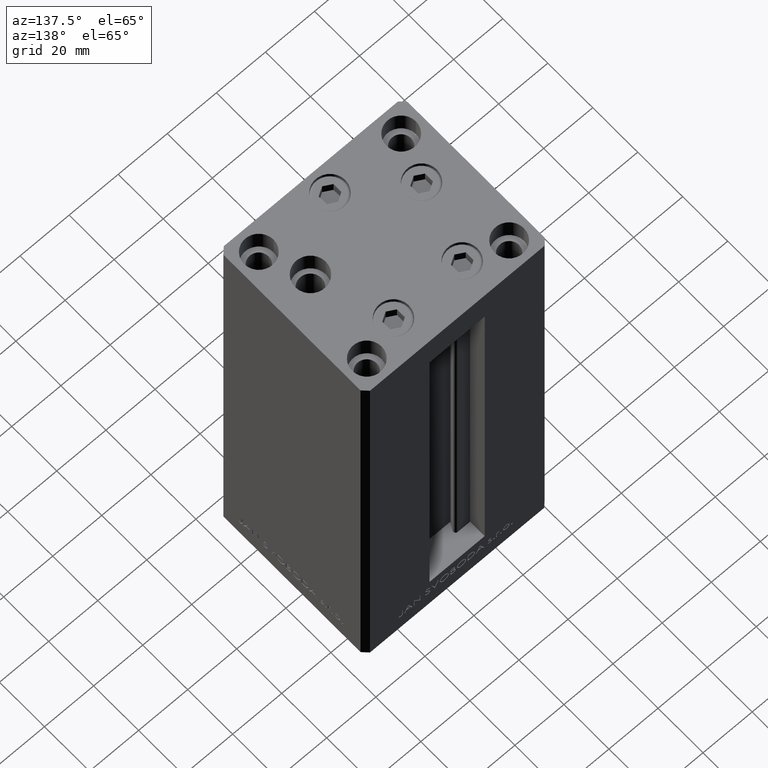
[diagram: clean part render]
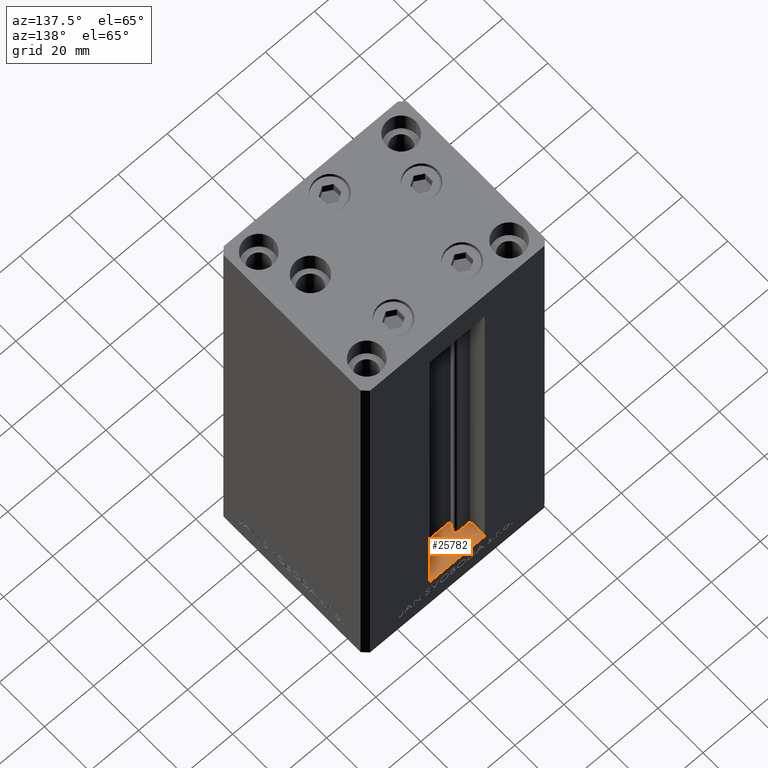
[diagram: same view with one face highlighted and labeled with its STEP entity id]
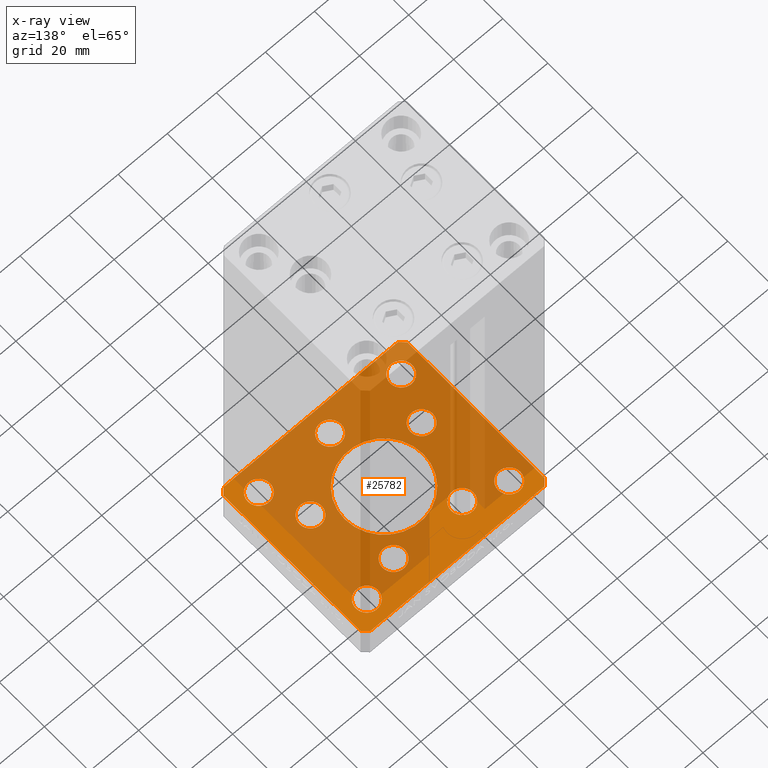
[diagram: x-ray of the same camera — body ghosted, the highlighted face saturated]
A machine part, auxiliary view. The second image highlights one B-rep face of the part: STEP entity #25782.
The next image is the same camera in x-ray: the body ghosted, the highlighted face saturated — about 74% of this face is hidden behind the body in this view.
In plain terms, the highlighted planar face has unit normal (0, 0, -1).
Its self-contained STEP definition (entity closure, byte-faithful):
#4 = CARTESIAN_POINT ( 'NONE',  ( -24.50000000000000000, -23.99999999999999645, -15.00000000000000000 ) ) ;
#116 = ORIENTED_EDGE ( 'NONE', *, *, #45130, .F. ) ;
#183 = DIRECTION ( 'NONE',  ( 1.000000000000000000, 0.000000000000000000, 0.000000000000000000 ) ) ;
#255 = EDGE_LOOP ( 'NONE', ( #15749, #4272 ) ) ;
#986 = EDGE_CURVE ( 'NONE', #38217, #24211, #26573, .T. ) ;
#1048 = CARTESIAN_POINT ( 'NONE',  ( 18.49106857963324657, 19.50000000000000000, -15.00000000000000000 ) ) ;
#1613 = CARTESIAN_POINT ( 'NONE',  ( 29.00000000000000000, 24.00000000000000355, -15.00000000000000000 ) ) ;
#1693 = CIRCLE ( 'NONE', #19871, 16.00000000000000000 ) ;
#1877 = EDGE_CURVE ( 'NONE', #40780, #24308, #14078, .T. ) ;
#1946 = DIRECTION ( 'NONE',  ( -0.000000000000000000, 0.000000000000000000, 1.000000000000000000 ) ) ;
#2206 = DIRECTION ( 'NONE',  ( -0.000000000000000000, 0.000000000000000000, 1.000000000000000000 ) ) ;
#2365 = CARTESIAN_POINT ( 'NONE',  ( -27.12741699796953299, -8.000000000000000000, -15.00000000000000000 ) ) ;
#2449 = VECTOR ( 'NONE', #3078, 1000.000000000000000 ) ;
#3078 = DIRECTION ( 'NONE',  ( 1.000000000000000000, 1.172770800660376149E-15, 0.000000000000000000 ) ) ;
#3452 = CIRCLE ( 'NONE', #5808, 4.500000000000000888 ) ;
#3788 = AXIS2_PLACEMENT_3D ( 'NONE', #20745, #1946, #37235 ) ;
#4053 = DIRECTION ( 'NONE',  ( 1.000000000000000000, 0.000000000000000000, 0.000000000000000000 ) ) ;
#4190 = CARTESIAN_POINT ( 'NONE',  ( 35.50000000000000000, 32.49999999999999289, -15.00000000000000000 ) ) ;
#4272 = ORIENTED_EDGE ( 'NONE', *, *, #15924, .T. ) ;
#4404 = DIRECTION ( 'NONE',  ( 0.7071067811865512365, -0.7071067811865439090, 0.000000000000000000 ) ) ;
#4513 = CARTESIAN_POINT ( 'NONE',  ( 4.500000000000001776, -24.00000000000001066, -15.00000000000000000 ) ) ;
#4534 = CARTESIAN_POINT ( 'NONE',  ( -4.500000000000001776, -24.00000000000001066, -15.00000000000000000 ) ) ;
#4544 = CARTESIAN_POINT ( 'NONE',  ( 18.12741699796953299, -8.000000000000000000, -15.00000000000000000 ) ) ;
#4550 = FACE_OUTER_BOUND ( 'NONE', #23425, .T. ) ;
#5247 = AXIS2_PLACEMENT_3D ( 'NONE', #18736, #48922, #15029 ) ;
#5261 = DIRECTION ( 'NONE',  ( 0.000000000000000000, -0.000000000000000000, -1.000000000000000000 ) ) ;
#5287 = ORIENTED_EDGE ( 'NONE', *, *, #46648, .F. ) ;
#5747 = ORIENTED_EDGE ( 'NONE', *, *, #1877, .F. ) ;
#5782 = EDGE_LOOP ( 'NONE', ( #19183, #24535 ) ) ;
#5808 = AXIS2_PLACEMENT_3D ( 'NONE', #37207, #33482, #33964 ) ;
#5925 = CARTESIAN_POINT ( 'NONE',  ( 29.00000000000000355, -23.99999999999999645, -15.00000000000000000 ) ) ;
#6341 = AXIS2_PLACEMENT_3D ( 'NONE', #39759, #20218, #38782 ) ;
#6362 = ORIENTED_EDGE ( 'NONE', *, *, #14155, .T. ) ;
#6502 = CIRCLE ( 'NONE', #30971, 4.499999999999997335 ) ;
#6777 = LINE ( 'NONE', #36974, #2449 ) ;
#6796 = LINE ( 'NONE', #14714, #40678 ) ;
#7023 = ORIENTED_EDGE ( 'NONE', *, *, #33014, .T. ) ;
#7046 = EDGE_LOOP ( 'NONE', ( #33510, #16805 ) ) ;
#7142 = CARTESIAN_POINT ( 'NONE',  ( -18.49106857963323947, 19.50000000000000000, -15.00000000000000000 ) ) ;
#7165 = VERTEX_POINT ( 'NONE', #24542 ) ;
#7549 = DIRECTION ( 'NONE',  ( 1.000000000000000000, 0.000000000000000000, 0.000000000000000000 ) ) ;
#7596 = CARTESIAN_POINT ( 'NONE',  ( -22.62741699796953299, -8.000000000000000000, -15.00000000000000000 ) ) ;
#7959 = CIRCLE ( 'NONE', #39590, 4.499999999999999112 ) ;
#8272 = FACE_BOUND ( 'NONE', #17121, .T. ) ;
#8275 = DIRECTION ( 'NONE',  ( -0.000000000000000000, 0.000000000000000000, 1.000000000000000000 ) ) ;
#8516 = FACE_BOUND ( 'NONE', #35074, .T. ) ;
#8809 = CARTESIAN_POINT ( 'NONE',  ( 24.50000000000000000, 24.00000000000000355, -15.00000000000000000 ) ) ;
#9318 = VERTEX_POINT ( 'NONE', #4 ) ;
#9497 = DIRECTION ( 'NONE',  ( 0.000000000000000000, -0.000000000000000000, -1.000000000000000000 ) ) ;
#9622 = CARTESIAN_POINT ( 'NONE',  ( -22.62741699796953299, -8.000000000000000000, -15.00000000000000000 ) ) ;
#9651 = EDGE_CURVE ( 'NONE', #24211, #38217, #45821, .T. ) ;
#9759 = DIRECTION ( 'NONE',  ( -0.000000000000000000, 0.000000000000000000, 1.000000000000000000 ) ) ;
#9764 = CIRCLE ( 'NONE', #21642, 4.500000000000000888 ) ;
#9787 = AXIS2_PLACEMENT_3D ( 'NONE', #22397, #41444, #7549 ) ;
#9994 = CARTESIAN_POINT ( 'NONE',  ( -16.00000000000000000, 1.959434878635765131E-15, -15.00000000000000000 ) ) ;
#10108 = CARTESIAN_POINT ( 'NONE',  ( 0.000000000000000000, -24.00000000000001066, -15.00000000000000000 ) ) ;
#10322 = AXIS2_PLACEMENT_3D ( 'NONE', #16369, #27745, #24033 ) ;
#10420 = CIRCLE ( 'NONE', #21483, 16.00000000000000000 ) ;
#10811 = VECTOR ( 'NONE', #25689, 1000.000000000000000 ) ;
#11246 = PLANE ( 'NONE',  #20124 ) ;
#11628 = ORIENTED_EDGE ( 'NONE', *, *, #47175, .T. ) ;
#11688 = ORIENTED_EDGE ( 'NONE', *, *, #22135, .T. ) ;
#11911 = EDGE_CURVE ( 'NONE', #24308, #21709, #28234, .T. ) ;
#11973 = EDGE_CURVE ( 'NONE', #23868, #22273, #28525, .T. ) ;
#11975 = VERTEX_POINT ( 'NONE', #28724 ) ;
#12220 = FACE_BOUND ( 'NONE', #255, .T. ) ;
#13325 = DIRECTION ( 'NONE',  ( 1.000000000000000000, 0.000000000000000000, 0.000000000000000000 ) ) ;
#13840 = EDGE_CURVE ( 'NONE', #45643, #11975, #17667, .T. ) ;
#13898 = ORIENTED_EDGE ( 'NONE', *, *, #45488, .F. ) ;
#14078 = LINE ( 'NONE', #44250, #10811 ) ;
#14154 = VERTEX_POINT ( 'NONE', #48760 ) ;
#14155 = EDGE_CURVE ( 'NONE', #47781, #41272, #32547, .T. ) ;
#14213 = CARTESIAN_POINT ( 'NONE',  ( -35.50000000000000711, 32.49999999999997868, -15.00000000000000000 ) ) ;
#14464 = DIRECTION ( 'NONE',  ( -0.7071067811865524577, 0.7071067811865426878, 0.000000000000000000 ) ) ;
#14714 = CARTESIAN_POINT ( 'NONE',  ( 37.50000000000000711, -30.49999999999992895, -15.00000000000000000 ) ) ;
#14801 = ORIENTED_EDGE ( 'NONE', *, *, #21953, .F. ) ;
#14822 = CARTESIAN_POINT ( 'NONE',  ( 35.50000000000000000, 32.49999999999999289, -15.00000000000000000 ) ) ;
#15029 = DIRECTION ( 'NONE',  ( 1.000000000000000000, 0.000000000000000000, 0.000000000000000000 ) ) ;
#15117 = AXIS2_PLACEMENT_3D ( 'NONE', #18347, #40873, #48040 ) ;
#15205 = FACE_BOUND ( 'NONE', #22546, .T. ) ;
#15361 = VERTEX_POINT ( 'NONE', #22062 ) ;
#15424 = DIRECTION ( 'NONE',  ( 1.000000000000000000, 0.000000000000000000, 0.000000000000000000 ) ) ;
#15687 = FACE_BOUND ( 'NONE', #7046, .T. ) ;
#15749 = ORIENTED_EDGE ( 'NONE', *, *, #11973, .T. ) ;
#15856 = VERTEX_POINT ( 'NONE', #36739 ) ;
#15880 = CARTESIAN_POINT ( 'NONE',  ( -18.12741699796953654, -8.000000000000000000, -15.00000000000000000 ) ) ;
#15924 = EDGE_CURVE ( 'NONE', #22273, #23868, #7959, .T. ) ;
#15933 = AXIS2_PLACEMENT_3D ( 'NONE', #10108, #24961, #32634 ) ;
#15994 = CIRCLE ( 'NONE', #27807, 4.499999999999997335 ) ;
#16171 = EDGE_CURVE ( 'NONE', #37331, #44269, #1693, .T. ) ;
#16369 = CARTESIAN_POINT ( 'NONE',  ( -13.99106857963324124, 19.50000000000000000, -15.00000000000000000 ) ) ;
#16500 = AXIS2_PLACEMENT_3D ( 'NONE', #9622, #22153, #28183 ) ;
#16654 = EDGE_CURVE ( 'NONE', #17652, #40780, #40817, .T. ) ;
#16805 = ORIENTED_EDGE ( 'NONE', *, *, #23112, .T. ) ;
#16842 = CARTESIAN_POINT ( 'NONE',  ( 35.50000000000001421, -32.49999999999992184, -15.00000000000000000 ) ) ;
#16943 = CARTESIAN_POINT ( 'NONE',  ( 29.00000000000000355, -23.99999999999999645, -15.00000000000000000 ) ) ;
#17004 = CIRCLE ( 'NONE', #18581, 4.500000000000000888 ) ;
#17121 = EDGE_LOOP ( 'NONE', ( #36898, #23331 ) ) ;
#17499 = VECTOR ( 'NONE', #25235, 1000.000000000000000 ) ;
#17591 = ORIENTED_EDGE ( 'NONE', *, *, #16171, .F. ) ;
#17652 = VERTEX_POINT ( 'NONE', #4190 ) ;
#17667 = LINE ( 'NONE', #28565, #42019 ) ;
#18340 = DIRECTION ( 'NONE',  ( 1.000000000000000000, 0.000000000000000000, 0.000000000000000000 ) ) ;
#18347 = CARTESIAN_POINT ( 'NONE',  ( 29.00000000000000000, 24.00000000000000355, -15.00000000000000000 ) ) ;
#18515 = LINE ( 'NONE', #48695, #46681 ) ;
#18581 = AXIS2_PLACEMENT_3D ( 'NONE', #31763, #9497, #28056 ) ;
#18736 = CARTESIAN_POINT ( 'NONE',  ( 22.62741699796953299, -8.000000000000000000, -15.00000000000000000 ) ) ;
#19041 = EDGE_CURVE ( 'NONE', #33903, #28567, #15994, .T. ) ;
#19183 = ORIENTED_EDGE ( 'NONE', *, *, #26745, .F. ) ;
#19371 = ORIENTED_EDGE ( 'NONE', *, *, #13840, .F. ) ;
#19399 = FACE_BOUND ( 'NONE', #37320, .T. ) ;
#19402 = CARTESIAN_POINT ( 'NONE',  ( 13.99106857963324124, 19.50000000000000000, -15.00000000000000000 ) ) ;
#19526 = VERTEX_POINT ( 'NONE', #1048 ) ;
#19752 = CARTESIAN_POINT ( 'NONE',  ( 33.50000000000000000, 24.00000000000000355, -15.00000000000000000 ) ) ;
#19772 = CARTESIAN_POINT ( 'NONE',  ( 24.50000000000000711, -23.99999999999999645, -15.00000000000000000 ) ) ;
#19871 = AXIS2_PLACEMENT_3D ( 'NONE', #46578, #5261, #15424 ) ;
#20124 = AXIS2_PLACEMENT_3D ( 'NONE', #42165, #30299, #41917 ) ;
#20171 = EDGE_LOOP ( 'NONE', ( #48916, #32260 ) ) ;
#20218 = DIRECTION ( 'NONE',  ( -0.000000000000000000, 0.000000000000000000, 1.000000000000000000 ) ) ;
#20541 = EDGE_CURVE ( 'NONE', #19526, #14154, #22332, .T. ) ;
#20700 = CIRCLE ( 'NONE', #15933, 4.500000000000001776 ) ;
#20745 = CARTESIAN_POINT ( 'NONE',  ( -29.00000000000000000, 24.00000000000000711, -15.00000000000000000 ) ) ;
#21483 = AXIS2_PLACEMENT_3D ( 'NONE', #46552, #32190, #35916 ) ;
#21537 = AXIS2_PLACEMENT_3D ( 'NONE', #29150, #2206, #13325 ) ;
#21642 = AXIS2_PLACEMENT_3D ( 'NONE', #1613, #38982, #45903 ) ;
#21709 = VERTEX_POINT ( 'NONE', #39525 ) ;
#21817 = ORIENTED_EDGE ( 'NONE', *, *, #25662, .F. ) ;
#21946 = CIRCLE ( 'NONE', #3788, 4.500000000000000888 ) ;
#21953 = EDGE_CURVE ( 'NONE', #40580, #31893, #9764, .T. ) ;
#22062 = CARTESIAN_POINT ( 'NONE',  ( -35.50000000000001421, -32.50000000000000711, -15.00000000000000000 ) ) ;
#22135 = EDGE_CURVE ( 'NONE', #25535, #15856, #3452, .T. ) ;
#22153 = DIRECTION ( 'NONE',  ( -0.000000000000000000, 0.000000000000000000, 1.000000000000000000 ) ) ;
#22273 = VERTEX_POINT ( 'NONE', #7142 ) ;
#22332 = CIRCLE ( 'NONE', #21537, 4.500000000000005329 ) ;
#22397 = CARTESIAN_POINT ( 'NONE',  ( -29.00000000000000000, -23.99999999999999645, -15.00000000000000000 ) ) ;
#22440 = AXIS2_PLACEMENT_3D ( 'NONE', #19402, #8275, #30303 ) ;
#22546 = EDGE_LOOP ( 'NONE', ( #6362, #11628 ) ) ;
#22798 = CARTESIAN_POINT ( 'NONE',  ( 16.00000000000000000, 0.000000000000000000, -15.00000000000000000 ) ) ;
#22935 = DIRECTION ( 'NONE',  ( -0.000000000000000000, 0.000000000000000000, 1.000000000000000000 ) ) ;
#23112 = EDGE_CURVE ( 'NONE', #14154, #19526, #40605, .T. ) ;
#23331 = ORIENTED_EDGE ( 'NONE', *, *, #48186, .T. ) ;
#23359 = FACE_BOUND ( 'NONE', #5782, .T. ) ;
#23425 = EDGE_LOOP ( 'NONE', ( #27024, #35788, #5747, #29093, #26534, #21817, #19371, #116 ) ) ;
#23868 = VERTEX_POINT ( 'NONE', #25381 ) ;
#23954 = EDGE_CURVE ( 'NONE', #7165, #9318, #39835, .T. ) ;
#24033 = DIRECTION ( 'NONE',  ( 1.000000000000000000, 0.000000000000000000, 0.000000000000000000 ) ) ;
#24211 = VERTEX_POINT ( 'NONE', #46860 ) ;
#24308 = VERTEX_POINT ( 'NONE', #25323 ) ;
#24535 = ORIENTED_EDGE ( 'NONE', *, *, #23954, .F. ) ;
#24542 = CARTESIAN_POINT ( 'NONE',  ( -33.50000000000000000, -23.99999999999999645, -15.00000000000000000 ) ) ;
#24961 = DIRECTION ( 'NONE',  ( -0.000000000000000000, 0.000000000000000000, 1.000000000000000000 ) ) ;
#25235 = DIRECTION ( 'NONE',  ( -1.000000000000000000, -1.954618001100627573E-16, 0.000000000000000000 ) ) ;
#25323 = CARTESIAN_POINT ( 'NONE',  ( -37.50000000000001421, 30.50000000000000000, -15.00000000000000000 ) ) ;
#25381 = CARTESIAN_POINT ( 'NONE',  ( -9.491068579633243019, 19.50000000000000000, -15.00000000000000000 ) ) ;
#25535 = VERTEX_POINT ( 'NONE', #39010 ) ;
#25608 = DIRECTION ( 'NONE',  ( 0.000000000000000000, 1.000000000000000000, 0.000000000000000000 ) ) ;
#25662 = EDGE_CURVE ( 'NONE', #11975, #27632, #6796, .T. ) ;
#25689 = DIRECTION ( 'NONE',  ( -0.7071067811865524577, -0.7071067811865426878, 0.000000000000000000 ) ) ;
#25782 = ADVANCED_FACE ( 'NONE', ( #26339, #45135, #15205, #8516, #15687, #12220, #45868, #23359, #4550, #19399, #8272 ), #11246, .F. ) ;
#26339 = FACE_BOUND ( 'NONE', #35890, .T. ) ;
#26534 = ORIENTED_EDGE ( 'NONE', *, *, #31144, .F. ) ;
#26573 = CIRCLE ( 'NONE', #5247, 4.500000000000000888 ) ;
#26745 = EDGE_CURVE ( 'NONE', #9318, #7165, #17004, .T. ) ;
#27024 = ORIENTED_EDGE ( 'NONE', *, *, #48440, .F. ) ;
#27632 = VERTEX_POINT ( 'NONE', #42126 ) ;
#27689 = CIRCLE ( 'NONE', #45841, 4.499999999999997335 ) ;
#27745 = DIRECTION ( 'NONE',  ( -0.000000000000000000, 0.000000000000000000, 1.000000000000000000 ) ) ;
#27807 = AXIS2_PLACEMENT_3D ( 'NONE', #7596, #22935, #183 ) ;
#28056 = DIRECTION ( 'NONE',  ( 1.000000000000000000, 0.000000000000000000, 0.000000000000000000 ) ) ;
#28183 = DIRECTION ( 'NONE',  ( 1.000000000000000000, 0.000000000000000000, 0.000000000000000000 ) ) ;
#28234 = LINE ( 'NONE', #43073, #36445 ) ;
#28525 = CIRCLE ( 'NONE', #10322, 4.499999999999999112 ) ;
#28565 = CARTESIAN_POINT ( 'NONE',  ( 35.50000000000001421, -32.49999999999992184, -15.00000000000000000 ) ) ;
#28567 = VERTEX_POINT ( 'NONE', #2365 ) ;
#28724 = CARTESIAN_POINT ( 'NONE',  ( 37.50000000000000711, -30.49999999999992895, -15.00000000000000000 ) ) ;
#29093 = ORIENTED_EDGE ( 'NONE', *, *, #16654, .F. ) ;
#29150 = CARTESIAN_POINT ( 'NONE',  ( 13.99106857963324124, 19.50000000000000000, -15.00000000000000000 ) ) ;
#29299 = CARTESIAN_POINT ( 'NONE',  ( 37.50000000000000711, 30.50000000000001421, -15.00000000000000000 ) ) ;
#30299 = DIRECTION ( 'NONE',  ( -0.000000000000000000, 0.000000000000000000, 1.000000000000000000 ) ) ;
#30303 = DIRECTION ( 'NONE',  ( 1.000000000000000000, 0.000000000000000000, 0.000000000000000000 ) ) ;
#30971 = AXIS2_PLACEMENT_3D ( 'NONE', #5925, #47004, #31175 ) ;
#31144 = EDGE_CURVE ( 'NONE', #27632, #17652, #44870, .T. ) ;
#31175 = DIRECTION ( 'NONE',  ( 1.000000000000000000, 0.000000000000000000, 0.000000000000000000 ) ) ;
#31209 = DIRECTION ( 'NONE',  ( 2.275047181608926165E-16, -1.000000000000000000, 0.000000000000000000 ) ) ;
#31763 = CARTESIAN_POINT ( 'NONE',  ( -29.00000000000000000, -23.99999999999999645, -15.00000000000000000 ) ) ;
#31791 = VERTEX_POINT ( 'NONE', #41484 ) ;
#31893 = VERTEX_POINT ( 'NONE', #8809 ) ;
#32190 = DIRECTION ( 'NONE',  ( 0.000000000000000000, -0.000000000000000000, -1.000000000000000000 ) ) ;
#32260 = ORIENTED_EDGE ( 'NONE', *, *, #38691, .T. ) ;
#32264 = DIRECTION ( 'NONE',  ( 0.7071067811865463515, 0.7071067811865487940, 0.000000000000000000 ) ) ;
#32547 = CIRCLE ( 'NONE', #38064, 4.500000000000001776 ) ;
#32634 = DIRECTION ( 'NONE',  ( 1.000000000000000000, 0.000000000000000000, 0.000000000000000000 ) ) ;
#33014 = EDGE_CURVE ( 'NONE', #15856, #25535, #21946, .T. ) ;
#33181 = CARTESIAN_POINT ( 'NONE',  ( 0.000000000000000000, -24.00000000000001066, -15.00000000000000000 ) ) ;
#33260 = CIRCLE ( 'NONE', #15117, 4.500000000000000888 ) ;
#33482 = DIRECTION ( 'NONE',  ( -0.000000000000000000, 0.000000000000000000, 1.000000000000000000 ) ) ;
#33510 = ORIENTED_EDGE ( 'NONE', *, *, #20541, .T. ) ;
#33903 = VERTEX_POINT ( 'NONE', #15880 ) ;
#33964 = DIRECTION ( 'NONE',  ( 1.000000000000000000, 0.000000000000000000, 0.000000000000000000 ) ) ;
#34610 = CIRCLE ( 'NONE', #16500, 4.499999999999997335 ) ;
#35074 = EDGE_LOOP ( 'NONE', ( #46315, #41439 ) ) ;
#35788 = ORIENTED_EDGE ( 'NONE', *, *, #11911, .F. ) ;
#35890 = EDGE_LOOP ( 'NONE', ( #17591, #5287 ) ) ;
#35916 = DIRECTION ( 'NONE',  ( 1.000000000000000000, 0.000000000000000000, 0.000000000000000000 ) ) ;
#35990 = DIRECTION ( 'NONE',  ( 1.000000000000000000, 0.000000000000000000, 0.000000000000000000 ) ) ;
#36445 = VECTOR ( 'NONE', #31209, 1000.000000000000000 ) ;
#36739 = CARTESIAN_POINT ( 'NONE',  ( -33.50000000000000000, 24.00000000000000711, -15.00000000000000000 ) ) ;
#36898 = ORIENTED_EDGE ( 'NONE', *, *, #44159, .T. ) ;
#36974 = CARTESIAN_POINT ( 'NONE',  ( -35.50000000000001421, -32.50000000000000711, -15.00000000000000000 ) ) ;
#37207 = CARTESIAN_POINT ( 'NONE',  ( -29.00000000000000000, 24.00000000000000711, -15.00000000000000000 ) ) ;
#37235 = DIRECTION ( 'NONE',  ( 1.000000000000000000, 0.000000000000000000, 0.000000000000000000 ) ) ;
#37320 = EDGE_LOOP ( 'NONE', ( #11688, #7023 ) ) ;
#37331 = VERTEX_POINT ( 'NONE', #22798 ) ;
#37701 = CARTESIAN_POINT ( 'NONE',  ( -13.99106857963324124, 19.50000000000000000, -15.00000000000000000 ) ) ;
#38064 = AXIS2_PLACEMENT_3D ( 'NONE', #33181, #41350, #18340 ) ;
#38217 = VERTEX_POINT ( 'NONE', #4544 ) ;
#38228 = EDGE_LOOP ( 'NONE', ( #14801, #13898 ) ) ;
#38419 = VERTEX_POINT ( 'NONE', #19772 ) ;
#38691 = EDGE_CURVE ( 'NONE', #28567, #33903, #34610, .T. ) ;
#38782 = DIRECTION ( 'NONE',  ( 1.000000000000000000, 0.000000000000000000, 0.000000000000000000 ) ) ;
#38982 = DIRECTION ( 'NONE',  ( 0.000000000000000000, -0.000000000000000000, -1.000000000000000000 ) ) ;
#39010 = CARTESIAN_POINT ( 'NONE',  ( -24.50000000000000000, 24.00000000000000711, -15.00000000000000000 ) ) ;
#39525 = CARTESIAN_POINT ( 'NONE',  ( -37.50000000000000000, -30.50000000000004263, -15.00000000000000000 ) ) ;
#39590 = AXIS2_PLACEMENT_3D ( 'NONE', #37701, #48584, #4053 ) ;
#39759 = CARTESIAN_POINT ( 'NONE',  ( 22.62741699796953299, -8.000000000000000000, -15.00000000000000000 ) ) ;
#39835 = CIRCLE ( 'NONE', #9787, 4.500000000000000888 ) ;
#40580 = VERTEX_POINT ( 'NONE', #19752 ) ;
#40605 = CIRCLE ( 'NONE', #22440, 4.500000000000005329 ) ;
#40678 = VECTOR ( 'NONE', #25608, 1000.000000000000000 ) ;
#40780 = VERTEX_POINT ( 'NONE', #14213 ) ;
#40817 = LINE ( 'NONE', #14822, #17499 ) ;
#40873 = DIRECTION ( 'NONE',  ( 0.000000000000000000, -0.000000000000000000, -1.000000000000000000 ) ) ;
#41272 = VERTEX_POINT ( 'NONE', #4534 ) ;
#41350 = DIRECTION ( 'NONE',  ( -0.000000000000000000, 0.000000000000000000, 1.000000000000000000 ) ) ;
#41439 = ORIENTED_EDGE ( 'NONE', *, *, #986, .T. ) ;
#41444 = DIRECTION ( 'NONE',  ( 0.000000000000000000, -0.000000000000000000, -1.000000000000000000 ) ) ;
#41484 = CARTESIAN_POINT ( 'NONE',  ( 33.50000000000000000, -23.99999999999999645, -15.00000000000000000 ) ) ;
#41917 = DIRECTION ( 'NONE',  ( 1.000000000000000000, 0.000000000000000000, 0.000000000000000000 ) ) ;
#42019 = VECTOR ( 'NONE', #32264, 1000.000000000000000 ) ;
#42126 = CARTESIAN_POINT ( 'NONE',  ( 37.50000000000000711, 30.50000000000001421, -15.00000000000000000 ) ) ;
#42165 = CARTESIAN_POINT ( 'NONE',  ( 0.000000000000000000, 0.000000000000000000, -15.00000000000000000 ) ) ;
#43073 = CARTESIAN_POINT ( 'NONE',  ( -37.50000000000001421, 30.50000000000000000, -15.00000000000000000 ) ) ;
#44023 = VECTOR ( 'NONE', #14464, 1000.000000000000000 ) ;
#44159 = EDGE_CURVE ( 'NONE', #31791, #38419, #27689, .T. ) ;
#44250 = CARTESIAN_POINT ( 'NONE',  ( -35.50000000000000711, 32.49999999999997868, -15.00000000000000000 ) ) ;
#44269 = VERTEX_POINT ( 'NONE', #9994 ) ;
#44870 = LINE ( 'NONE', #29299, #44023 ) ;
#45130 = EDGE_CURVE ( 'NONE', #15361, #45643, #6777, .T. ) ;
#45135 = FACE_BOUND ( 'NONE', #20171, .T. ) ;
#45488 = EDGE_CURVE ( 'NONE', #31893, #40580, #33260, .T. ) ;
#45643 = VERTEX_POINT ( 'NONE', #16842 ) ;
#45821 = CIRCLE ( 'NONE', #6341, 4.500000000000000888 ) ;
#45841 = AXIS2_PLACEMENT_3D ( 'NONE', #16943, #9759, #35990 ) ;
#45868 = FACE_BOUND ( 'NONE', #38228, .T. ) ;
#45903 = DIRECTION ( 'NONE',  ( 1.000000000000000000, 0.000000000000000000, 0.000000000000000000 ) ) ;
#46315 = ORIENTED_EDGE ( 'NONE', *, *, #9651, .T. ) ;
#46552 = CARTESIAN_POINT ( 'NONE',  ( 0.000000000000000000, 0.000000000000000000, -15.00000000000000000 ) ) ;
#46578 = CARTESIAN_POINT ( 'NONE',  ( 0.000000000000000000, 0.000000000000000000, -15.00000000000000000 ) ) ;
#46648 = EDGE_CURVE ( 'NONE', #44269, #37331, #10420, .T. ) ;
#46681 = VECTOR ( 'NONE', #4404, 1000.000000000000000 ) ;
#46860 = CARTESIAN_POINT ( 'NONE',  ( 27.12741699796953654, -8.000000000000000000, -15.00000000000000000 ) ) ;
#47004 = DIRECTION ( 'NONE',  ( -0.000000000000000000, 0.000000000000000000, 1.000000000000000000 ) ) ;
#47175 = EDGE_CURVE ( 'NONE', #41272, #47781, #20700, .T. ) ;
#47781 = VERTEX_POINT ( 'NONE', #4513 ) ;
#48040 = DIRECTION ( 'NONE',  ( 1.000000000000000000, 0.000000000000000000, 0.000000000000000000 ) ) ;
#48186 = EDGE_CURVE ( 'NONE', #38419, #31791, #6502, .T. ) ;
#48440 = EDGE_CURVE ( 'NONE', #21709, #15361, #18515, .T. ) ;
#48584 = DIRECTION ( 'NONE',  ( -0.000000000000000000, 0.000000000000000000, 1.000000000000000000 ) ) ;
#48695 = CARTESIAN_POINT ( 'NONE',  ( -37.50000000000000000, -30.50000000000004263, -15.00000000000000000 ) ) ;
#48760 = CARTESIAN_POINT ( 'NONE',  ( 9.491068579633235913, 19.50000000000000000, -15.00000000000000000 ) ) ;
#48916 = ORIENTED_EDGE ( 'NONE', *, *, #19041, .T. ) ;
#48922 = DIRECTION ( 'NONE',  ( -0.000000000000000000, 0.000000000000000000, 1.000000000000000000 ) ) ;